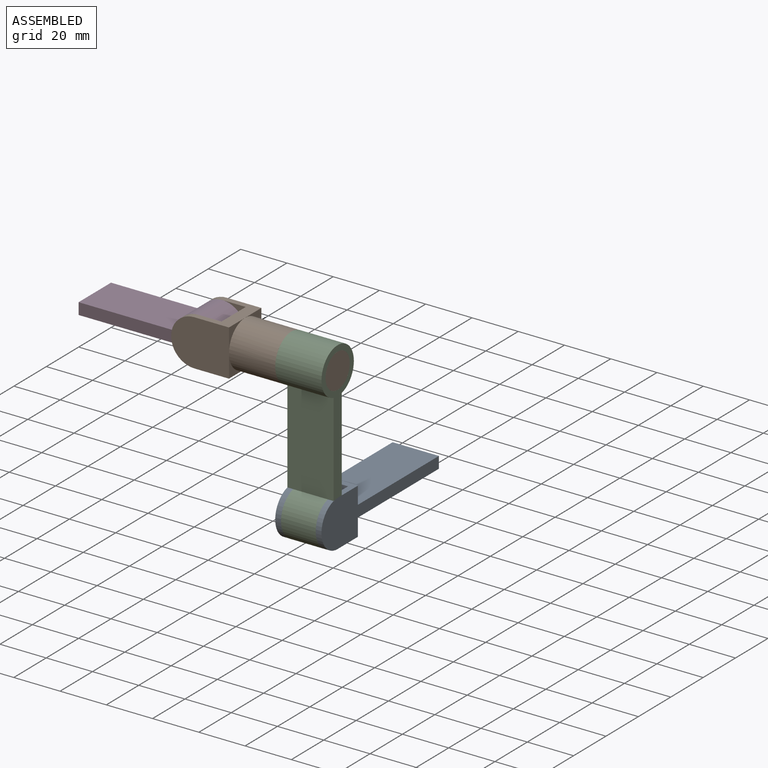
[diagram: assembled view]
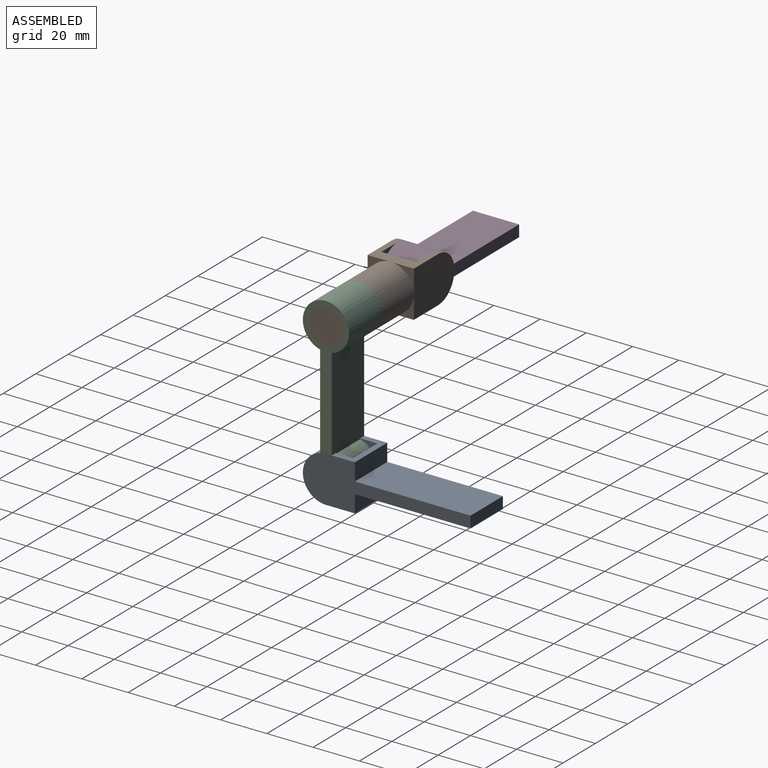
[diagram: assembled view, second angle]
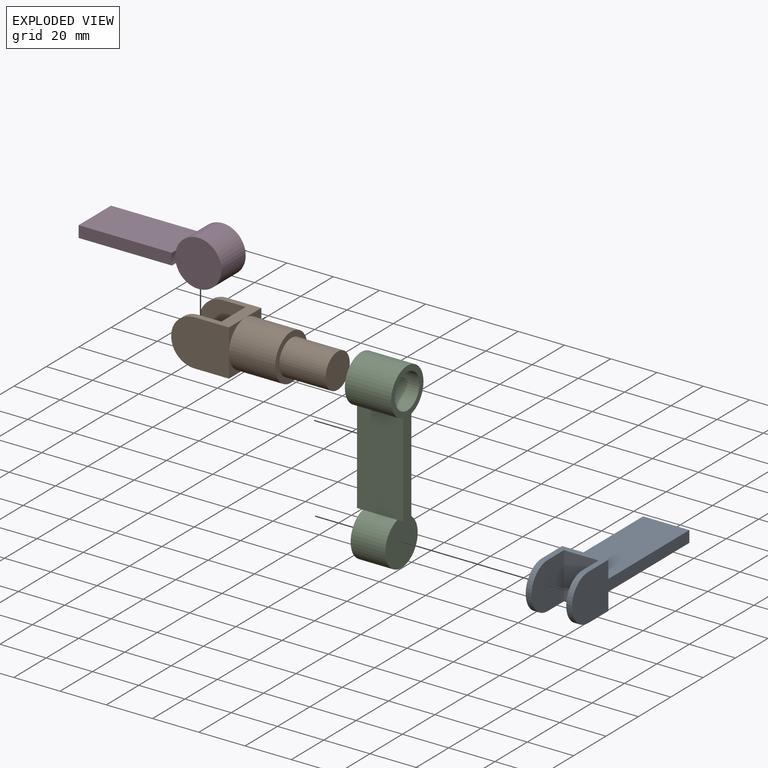
[diagram: exploded view]
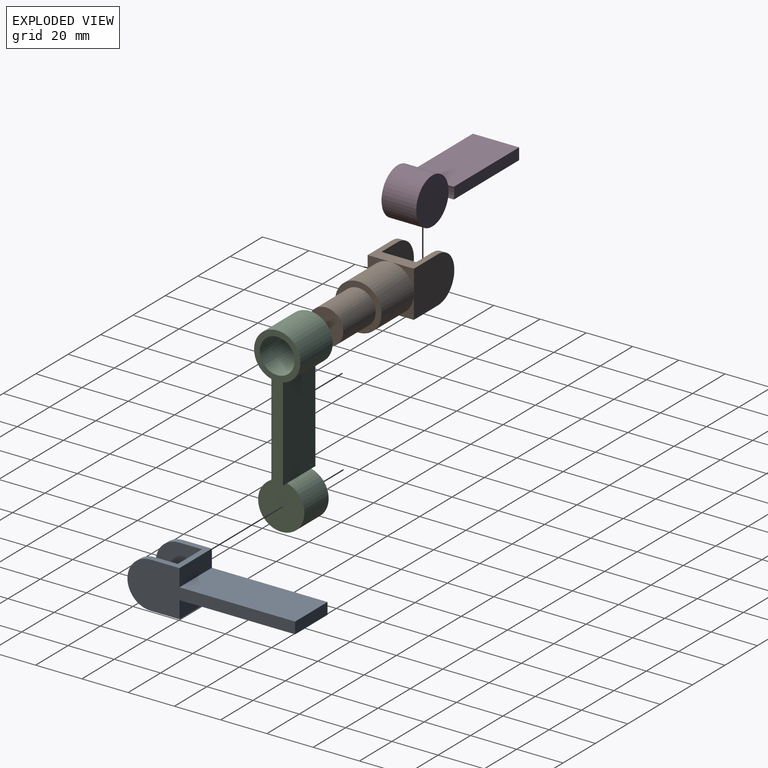
[diagram: exploded view, second angle]
ASSEMBLY  parts=4 mates=3
PART A: 14 faces, bbox 72.5x20x20 mm
  f0: plane 20x7.5mm, normal (1,0,0), area 150mm2, adj f3,f6,f7,f11
  f1: cylinder r=10mm len=20mm, axis (0,1,0), area 78.5mm2, adj f3,f5,f7,f9
  f2: cylinder r=10mm len=20mm, axis (0,1,0), area 78.5mm2, adj f3,f5,f6,f10
  f3: plane 20x12.5mm, normal (0,0,-1), area 100mm2, adj f0,f1,f2,f6,f7,f8,f9,f10
  f4: plane 20x7.5mm, normal (1,0,0), area 150mm2, adj f5,f6,f7,f12
  f5: plane 20x12.5mm, normal (0,0,1), area 100mm2, adj f1,f2,f4,f6,f7,f8,f9,f10
  f6: plane 72.5x20mm, normal (0,-1,0), area 657.1mm2, adj f0,f2,f3,f4,f5,f11,f12,f13
  f7: plane 72.5x20mm, normal (0,1,0), area 657.1mm2, adj f0,f1,f3,f4,f5,f11,f12,f13
  f8: plane 20x15mm, normal (-1,0,0), area 300mm2, adj f3,f5,f9,f10
  f9: plane 20x20mm, normal (0,-1,0), area 357.1mm2, adj f1,f3,f5,f8
  f10: plane 20x20mm, normal (0,1,0), area 357.1mm2, adj f2,f3,f5,f8
  f11: plane 50x20mm, normal (0,0,-1), area 1000mm2, adj f0,f6,f7,f13
  f12: plane 50x20mm, normal (0,0,1), area 1000mm2, adj f4,f6,f7,f13
  f13: plane 20x5mm, normal (1,0,0), area 100mm2, adj f6,f7,f11,f12
PART B: 17 faces, bbox 65x20x20 mm
  f0: plane 10x10mm, normal (1,0,0), area 21.5mm2, adj f5,f9,f13
  f1: plane 10x10mm, normal (1,0,0), area 21.5mm2, adj f7,f9,f13
  f2: plane 10x10mm, normal (1,0,0), area 21.5mm2, adj f7,f8,f13
  f3: cylinder r=10mm len=20mm, axis (0,1,0), area 78.5mm2, adj f5,f7,f9,f11
  f4: cylinder r=10mm len=20mm, axis (0,1,0), area 78.5mm2, adj f5,f7,f8,f12
  f5: plane 20x15mm, normal (0,0,-1), area 150mm2, adj f0,f3,f4,f6,f8,f9,f10,f11
  f6: plane 10x10mm, normal (1,0,0), area 21.5mm2, adj f5,f8,f13
  f7: plane 20x15mm, normal (0,0,1), area 150mm2, adj f1,f2,f3,f4,f8,f9,f10,f11
  f8: plane 25x20mm, normal (0,-1,0), area 457.1mm2, adj f2,f4,f5,f6,f7
  f9: plane 25x20mm, normal (0,1,0), area 457.1mm2, adj f0,f1,f3,f5,f7
  f10: plane 20x15mm, normal (-1,0,0), area 300mm2, adj f5,f7,f11,f12
  f11: plane 20x20mm, normal (0,-1,0), area 357.1mm2, adj f3,f5,f7,f10
  f12: plane 20x20mm, normal (0,1,0), area 357.1mm2, adj f4,f5,f7,f10
  f13: cylinder r=10mm len=20mm, axis (-1,0,0), area 1256.6mm2, adj f0,f1,f2,f6,f14
  f14: plane 20x20mm, normal (1,0,0), area 137.4mm2, adj f13,f15
  f15: cylinder r=7.5mm len=20mm, axis (-1,0,0), area 942.5mm2, adj f14,f16
  f16: plane 15x15mm, normal (1,0,0), area 176.7mm2, adj f15
PART C: 11 faces, bbox 79.7x20x20 mm
  f0: plane 60x20mm, normal (0,1,0), area 336.9mm2, adj f3,f4,f5,f6,f9
  f1: plane 60x20mm, normal (0,-1,0), area 336.9mm2, adj f3,f4,f5,f6,f7
  f2: cylinder r=10mm len=20mm, axis (0,1,0), area 866.7mm2, adj f3,f5,f8,f10
  f3: plane 40.32x20mm, normal (0,0,1), area 806.4mm2, adj f0,f1,f2,f4,f7,f9
  f4: cylinder r=10mm len=20mm, axis (0,1,0), area 1155.6mm2, adj f0,f1,f3,f5
  f5: plane 40.32x20mm, normal (0,0,-1), area 806.4mm2, adj f0,f1,f2,f4,f7,f9
  f6: cylinder r=7.5mm len=20mm, axis (0,1,0), area 942.5mm2, adj f0,f1
  f7: cylinder r=10mm len=5mm, axis (0,-1,0), area 12.6mm2, adj f1,f3,f5,f8
  f8: plane 20x20mm, normal (0,-1,0), area 314.2mm2, adj f2,f7
  f9: extruded ~5x2.5mm, area 12.6mm2, adj f0,f3,f5,f10
  f10: plane 20x20mm, normal (0,1,0), area 314.2mm2, adj f2,f9
PART D: 10 faces, bbox 60x20x20 mm
  f0: plane 40.32x5mm, normal (0,1,0), area 200.5mm2, adj f2,f3,f4,f8
  f1: cylinder r=10mm len=20mm, axis (0,1,0), area 866.7mm2, adj f2,f4,f7,f9
  f2: plane 40.32x20mm, normal (0,0,1), area 806.4mm2, adj f0,f1,f3,f5,f6,f8
  f3: plane 20x5mm, normal (-1,0,0), area 100mm2, adj f0,f2,f4,f5
  f4: plane 40.32x20mm, normal (0,0,-1), area 806.4mm2, adj f0,f1,f3,f5,f6,f8
  f5: plane 40.32x5mm, normal (0,-1,0), area 200.5mm2, adj f2,f3,f4,f6
  f6: cylinder r=10mm len=5mm, axis (0,-1,0), area 12.6mm2, adj f2,f4,f5,f7
  f7: plane 20x20mm, normal (0,-1,0), area 314.2mm2, adj f1,f6
  f8: extruded ~5x2.5mm, area 12.6mm2, adj f0,f2,f4,f9
  f9: plane 20x20mm, normal (0,1,0), area 314.2mm2, adj f1,f8
PLACE A rot(axis=(0.71,0.71,0),180deg) t=(45,-10,-59.68)mm
PLACE B t=(0,-10,0)mm
PLACE C rot(axis=(-0.58,0.58,0.58),120deg) t=(35,-10,0)mm
PLACE D at identity fixed
MATE revolute C.f6 <-> B.f15  axis (-1,0,0) through (55,-10,0)mm
MATE revolute A.f1 <-> C.f2  axis (-1,0,0) through (52.5,-10,-59.68)mm
MATE revolute D.f1 <-> B.f3  axis (0,-1,0) through (0,-17.5,0)mm
